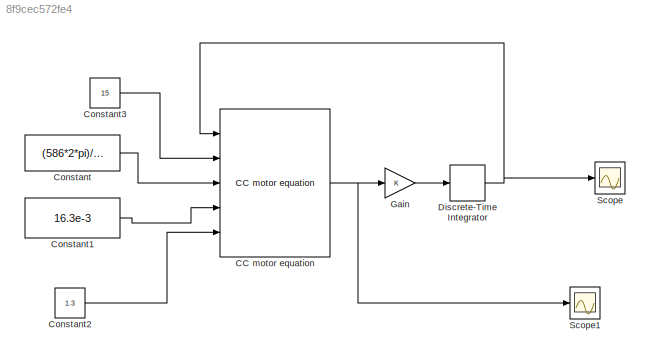
MODEL slx_8f9cec572fe4
KIND model
CONFIG AbsTol = auto
CONFIG EnableMultiTasking = off
CONFIG FixedStep = auto
CONFIG MaxStep = auto
CONFIG MinStep = auto
CONFIG RelTol = 1e-3
CONFIG SampleTimeConstraint = Unconstrained
CONFIG Solver = VariableStepAuto
CONFIG SolverName = VariableStepAuto
CONFIG StartTime = 0.0
CONFIG StopTime = 10.0
BLOCK [Reference] CC motor equation  REF=ccmotor_lib/CC motor equation  (lib defined in slx_be3b3c89daa5)
  Ports = [5, 1]
  SourceBlock = ccmotor_lib/CC motor equation
  SourceType = SubSystem
BLOCK [Constant] Constant
  Value = (586*2*pi)/60.0
BLOCK [Constant] Constant1
  Value = 16.3e-3
BLOCK [Constant] Constant2
  Value = 1.3
BLOCK [Constant] Constant3
  Value = 15
BLOCK [DiscreteIntegrator] Discrete-Time Integrator
  ICPrevOutput = DiscIntNeverNeededParam
  ICPrevScaledInput = DiscIntNeverNeededParam
  InitialConditionSetting = State (most efficient)
  Ports = [1, 1]
  SampleTime = -1
BLOCK [Gain] Gain
  OutDataTypeStr = Inherit: Inherit via internal rule
  ParamDataTypeStr = Inherit: Inherit via internal rule
  SaturateOnIntegerOverflow = off
BLOCK [Scope] Scope
  NumInputPorts = 1
  Ports = [1]
  ScopeSpecificationString = Simulink.scopes.TimeScopeBlockCfg('CurrentConfiguration', extmgr.ConfigurationSet(extmgr.Configuration('Core','General UI',true),extmgr.Configuration('Core','Source UI',true),extmgr.Configuration('Sources','WiredSimulink',true),extmgr.Configuration('Visuals','Time Domain',true,'SerializedDisplays',{struct('MinYLimReal','-0.03055','MaxYLimReal','0.27493','YLabelReal','','MinYLimMag','0.00000','MaxY...<+1373ch>
BLOCK [Scope] Scope1
  NumInputPorts = 1
  Ports = [1]
  ScopeSpecificationString = Simulink.scopes.TimeScopeBlockCfg('CurrentConfiguration', extmgr.ConfigurationSet(extmgr.Configuration('Core','General UI',true),extmgr.Configuration('Core','Source UI',true),extmgr.Configuration('Sources','WiredSimulink',true,'DataLoggingVariableName','ScopeData1'),extmgr.Configuration('Visuals','Time Domain',true,'SerializedDisplays',{struct('MinYLimReal','-0.02346','MaxYLimReal','0.21158','YLab...<+1406ch>
NET CC motor equation:1 -> Gain:1, Scope1:1
LINE Constant1:1 -> CC motor equation:4
LINE Constant2:1 -> CC motor equation:5
LINE Constant3:1 -> CC motor equation:2
LINE Constant:1 -> CC motor equation:3
NET Discrete-Time Integrator:1 -> CC motor equation:1, Scope:1
LINE Gain:1 -> Discrete-Time Integrator:1
note: NET lines group one-source signal fan-out (src -> all destinations, sorted); 1:1 wires keep LINE
